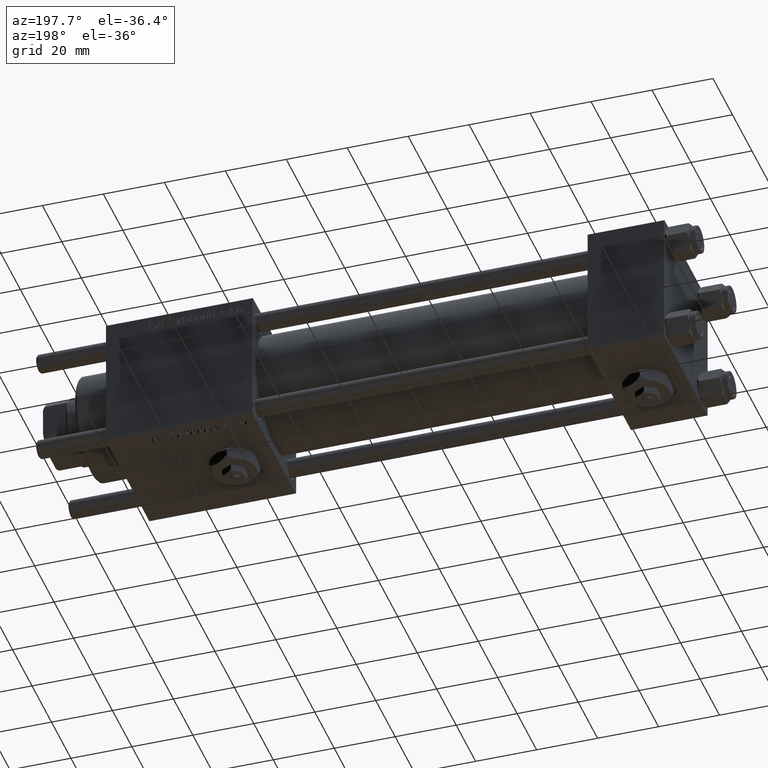
[diagram: clean part render]
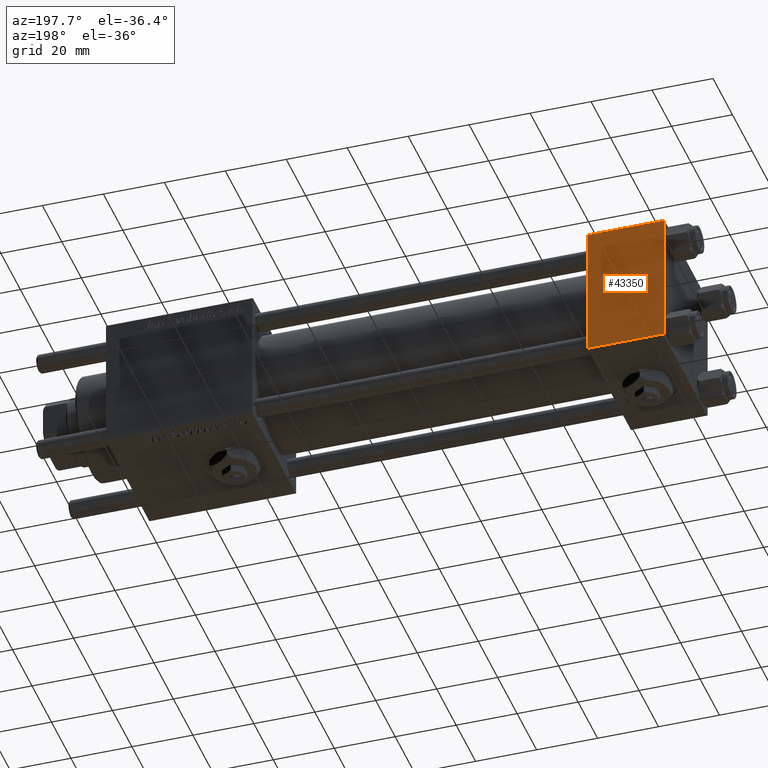
[diagram: same view with one face highlighted and labeled with its STEP entity id]
A machine part, auxiliary view. The second image highlights one B-rep face of the part: STEP entity #43350.
In plain terms, the highlighted planar face has unit normal (0, 1, 0).
Its self-contained STEP definition (entity closure, byte-faithful):
#1987 = CARTESIAN_POINT ( 'NONE',  ( 25.00000000000000000, 22.50000000000000000, -21.99999999999996803 ) ) ;
#2612 = DIRECTION ( 'NONE',  ( 1.000000000000000000, 0.000000000000000000, 0.000000000000000000 ) ) ;
#3125 = EDGE_CURVE ( 'NONE', #5057, #52044, #54135, .T. ) ;
#5057 = VERTEX_POINT ( 'NONE', #22898 ) ;
#7319 = EDGE_CURVE ( 'NONE', #52044, #15668, #33186, .T. ) ;
#7382 = CARTESIAN_POINT ( 'NONE',  ( 25.00000000000000000, 22.50000000000000000, 22.50000000000000355 ) ) ;
#8320 = DIRECTION ( 'NONE',  ( 0.000000000000000000, 0.000000000000000000, -1.000000000000000000 ) ) ;
#8461 = VECTOR ( 'NONE', #53536, 1000.000000000000000 ) ;
#9847 = AXIS2_PLACEMENT_3D ( 'NONE', #56552, #14968, #39236 ) ;
#12515 = ORIENTED_EDGE ( 'NONE', *, *, #22356, .T. ) ;
#13691 = VECTOR ( 'NONE', #8320, 1000.000000000000000 ) ;
#14968 = DIRECTION ( 'NONE',  ( -0.000000000000000000, 1.000000000000000000, 0.000000000000000000 ) ) ;
#15668 = VERTEX_POINT ( 'NONE', #21782 ) ;
#16255 = CARTESIAN_POINT ( 'NONE',  ( 25.00000000000000000, 22.50000000000000000, 21.99999999999999645 ) ) ;
#19518 = FACE_OUTER_BOUND ( 'NONE', #35097, .T. ) ;
#21782 = CARTESIAN_POINT ( 'NONE',  ( 0.000000000000000000, 22.50000000000000000, -21.99999999999996803 ) ) ;
#22356 = EDGE_CURVE ( 'NONE', #30792, #5057, #44803, .T. ) ;
#22898 = CARTESIAN_POINT ( 'NONE',  ( 25.00000000000000000, 22.50000000000000000, 21.99999999999999645 ) ) ;
#30792 = VERTEX_POINT ( 'NONE', #33725 ) ;
#31236 = VECTOR ( 'NONE', #2612, 1000.000000000000000 ) ;
#33186 = LINE ( 'NONE', #39221, #45441 ) ;
#33725 = CARTESIAN_POINT ( 'NONE',  ( 0.000000000000000000, 22.50000000000000000, 21.99999999999999645 ) ) ;
#35097 = EDGE_LOOP ( 'NONE', ( #37151, #50084, #51088, #12515 ) ) ;
#37151 = ORIENTED_EDGE ( 'NONE', *, *, #3125, .T. ) ;
#38051 = PLANE ( 'NONE',  #9847 ) ;
#39221 = CARTESIAN_POINT ( 'NONE',  ( 25.00000000000000000, 22.50000000000000000, -21.99999999999998224 ) ) ;
#39236 = DIRECTION ( 'NONE',  ( 0.000000000000000000, -0.000000000000000000, 1.000000000000000000 ) ) ;
#39308 = CARTESIAN_POINT ( 'NONE',  ( 0.000000000000000000, 22.50000000000000000, 22.50000000000000355 ) ) ;
#43010 = EDGE_CURVE ( 'NONE', #30792, #15668, #49918, .T. ) ;
#43350 = ADVANCED_FACE ( 'NONE', ( #19518 ), #38051, .T. ) ;
#44803 = LINE ( 'NONE', #16255, #31236 ) ;
#45441 = VECTOR ( 'NONE', #53781, 1000.000000000000000 ) ;
#49918 = LINE ( 'NONE', #39308, #13691 ) ;
#50084 = ORIENTED_EDGE ( 'NONE', *, *, #7319, .T. ) ;
#51088 = ORIENTED_EDGE ( 'NONE', *, *, #43010, .F. ) ;
#52044 = VERTEX_POINT ( 'NONE', #1987 ) ;
#53536 = DIRECTION ( 'NONE',  ( 0.000000000000000000, 0.000000000000000000, -1.000000000000000000 ) ) ;
#53781 = DIRECTION ( 'NONE',  ( -1.000000000000000000, 0.000000000000000000, 0.000000000000000000 ) ) ;
#54135 = LINE ( 'NONE', #7382, #8461 ) ;
#56552 = CARTESIAN_POINT ( 'NONE',  ( 25.00000000000000000, 22.50000000000000000, 22.50000000000000355 ) ) ;